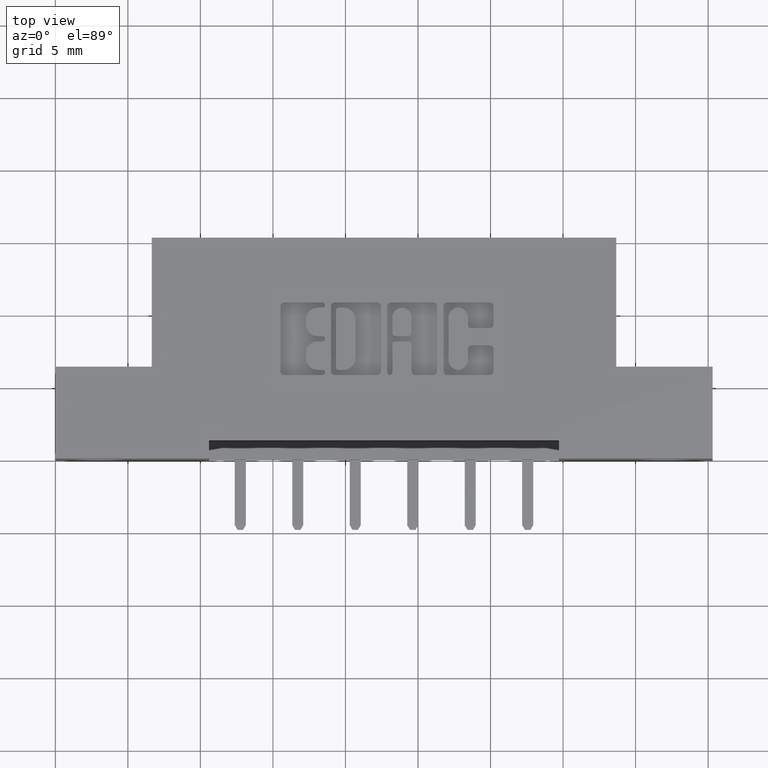
[diagram: clean part render]
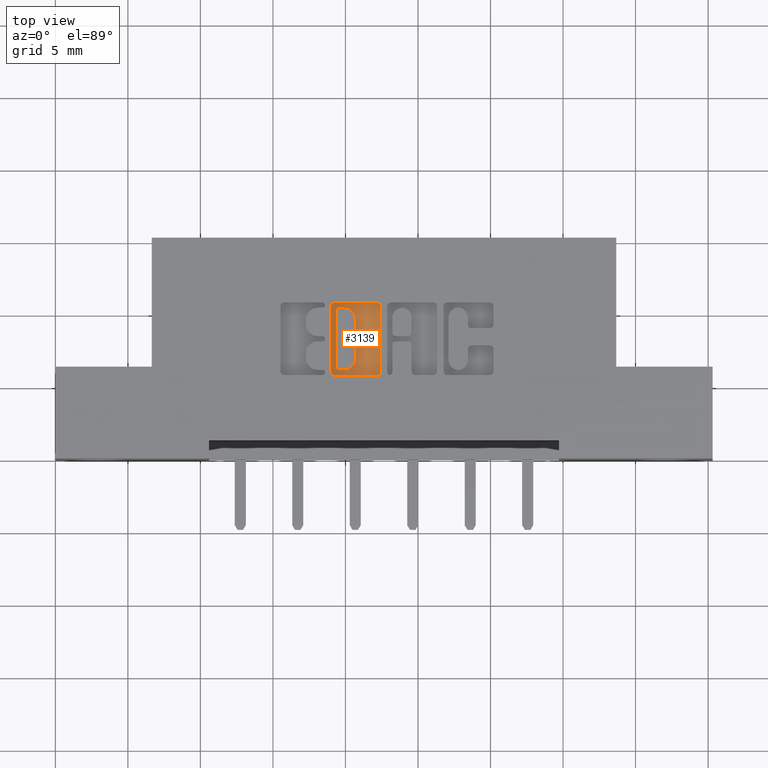
[diagram: same view with one face highlighted and labeled with its STEP entity id]
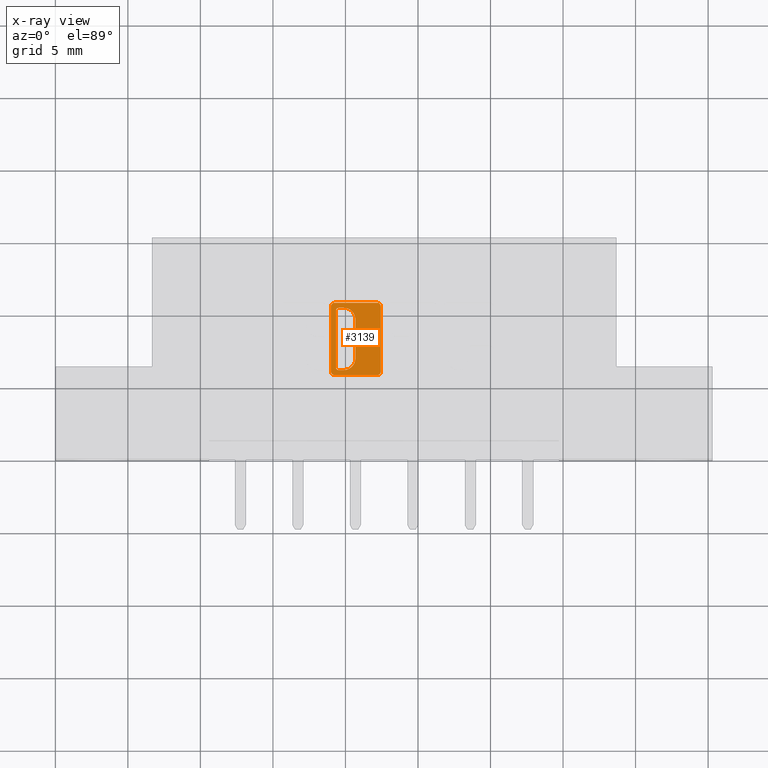
[diagram: x-ray of the same camera — body ghosted, the highlighted face saturated]
A machine part, top view. The second image highlights one B-rep face of the part: STEP entity #3139.
The next image is the same camera in x-ray: the body ghosted, the highlighted face saturated — about 0% of this face is hidden behind the body in this view.
In plain terms, the highlighted planar face has unit normal (0, 0, 1).
Its self-contained STEP definition (entity closure, byte-faithful):
#94 = VECTOR ( 'NONE', #9483, 39.37007874015748100 ) ;
#143 = DIRECTION ( 'NONE',  ( -0.0000000000000000000, 0.0000000000000000000, 1.000000000000000000 ) ) ;
#162 = DIRECTION ( 'NONE',  ( 1.000000000000000000, 0.0000000000000000000, 0.0000000000000000000 ) ) ;
#177 = DIRECTION ( 'NONE',  ( 1.000000000000000000, 0.0000000000000000000, 0.0000000000000000000 ) ) ;
#237 = DIRECTION ( 'NONE',  ( -0.0000000000000000000, 0.0000000000000000000, 1.000000000000000000 ) ) ;
#292 = ORIENTED_EDGE ( 'NONE', *, *, #4037, .F. ) ;
#304 = LINE ( 'NONE', #1488, #3826 ) ;
#370 = CARTESIAN_POINT ( 'NONE',  ( 0.7577707099630097700, 0.4133410318342098400, -0.01000000000000000000 ) ) ;
#591 = ORIENTED_EDGE ( 'NONE', *, *, #5240, .T. ) ;
#613 = ORIENTED_EDGE ( 'NONE', *, *, #1773, .T. ) ;
#661 = CIRCLE ( 'NONE', #7808, 0.009815670203806754800 ) ;
#672 = CARTESIAN_POINT ( 'NONE',  ( 0.8834112885716686200, 0.2366589681657896800, -0.01000000000000000000 ) ) ;
#867 = AXIS2_PLACEMENT_3D ( 'NONE', #8809, #8781, #8773 ) ;
#1113 = EDGE_CURVE ( 'NONE', #1542, #5861, #8024, .T. ) ;
#1160 = CARTESIAN_POINT ( 'NONE',  ( 0.7479550397591688800, 0.4133410318342098400, -0.01000000000000000000 ) ) ;
#1187 = DIRECTION ( 'NONE',  ( -0.0000000000000000000, 0.0000000000000000000, 1.000000000000000000 ) ) ;
#1282 = AXIS2_PLACEMENT_3D ( 'NONE', #370, #237, #162 ) ;
#1301 = ORIENTED_EDGE ( 'NONE', *, *, #3531, .T. ) ;
#1362 = CARTESIAN_POINT ( 'NONE',  ( 0.7479550397591688800, 0.2366589681657896800, -0.01000000000000000000 ) ) ;
#1395 = CARTESIAN_POINT ( 'NONE',  ( 0.8142108136348432700, 0.2719953808994842700, -0.01000000000000000000 ) ) ;
#1412 = EDGE_LOOP ( 'NONE', ( #613, #591, #2092, #4276, #1301, #4683, #5164, #7546 ) ) ;
#1488 = CARTESIAN_POINT ( 'NONE',  ( 0.0000000000000000000, 0.4094147637527241800, -0.01000000000000000000 ) ) ;
#1527 = VERTEX_POINT ( 'NONE', #4194 ) ;
#1542 = VERTEX_POINT ( 'NONE', #4350 ) ;
#1677 = CIRCLE ( 'NONE', #6327, 0.03141014465217194900 ) ;
#1708 = CARTESIAN_POINT ( 'NONE',  ( 0.0000000000000000000, 0.2268432979619829400, -0.01000000000000000000 ) ) ;
#1736 = CARTESIAN_POINT ( 'NONE',  ( 0.0000000000000000000, 0.2405852362473140100, -0.01000000000000000000 ) ) ;
#1754 = EDGE_CURVE ( 'NONE', #9568, #1527, #661, .T. ) ;
#1759 = AXIS2_PLACEMENT_3D ( 'NONE', #6618, #2136, #7354 ) ;
#1773 = EDGE_CURVE ( 'NONE', #8541, #6212, #8355, .T. ) ;
#1874 = AXIS2_PLACEMENT_3D ( 'NONE', #2987, #8193, #3746 ) ;
#1912 = FACE_BOUND ( 'NONE', #8977, .T. ) ;
#2063 = EDGE_CURVE ( 'NONE', #4796, #4233, #304, .T. ) ;
#2092 = ORIENTED_EDGE ( 'NONE', *, *, #8126, .T. ) ;
#2136 = DIRECTION ( 'NONE',  ( -0.0000000000000000000, 0.0000000000000000000, 1.000000000000000000 ) ) ;
#2425 = VECTOR ( 'NONE', #5284, 39.37007874015748100 ) ;
#2501 = DIRECTION ( 'NONE',  ( -1.000000000000000000, 0.0000000000000000000, 0.0000000000000000000 ) ) ;
#2803 = CIRCLE ( 'NONE', #4771, 0.006870969142667693000 ) ;
#2848 = LINE ( 'NONE', #4495, #6589 ) ;
#2959 = DIRECTION ( 'NONE',  ( -0.0000000000000000000, 0.0000000000000000000, 1.000000000000000000 ) ) ;
#2987 = CARTESIAN_POINT ( 'NONE',  ( 0.7828006689826730900, 0.2719953808994842700, -0.01000000000000000000 ) ) ;
#3017 = LINE ( 'NONE', #1708, #7460 ) ;
#3038 = EDGE_CURVE ( 'NONE', #8745, #8541, #6597, .T. ) ;
#3043 = VERTEX_POINT ( 'NONE', #8919 ) ;
#3071 = AXIS2_PLACEMENT_3D ( 'NONE', #7437, #2959, #8161 ) ;
#3139 = ADVANCED_FACE ( 'NONE', ( #1912, #7873 ), #8849, .T. ) ;
#3199 = VERTEX_POINT ( 'NONE', #8511 ) ;
#3269 = VERTEX_POINT ( 'NONE', #6590 ) ;
#3279 = VERTEX_POINT ( 'NONE', #6527 ) ;
#3283 = CARTESIAN_POINT ( 'NONE',  ( 0.8142108136348432700, 0.0000000000000000000, -0.01000000000000000000 ) ) ;
#3523 = EDGE_CURVE ( 'NONE', #3199, #3043, #2848, .T. ) ;
#3531 = EDGE_CURVE ( 'NONE', #9411, #9568, #8548, .T. ) ;
#3547 = ORIENTED_EDGE ( 'NONE', *, *, #5487, .T. ) ;
#3746 = DIRECTION ( 'NONE',  ( 1.000000000000000000, 0.0000000000000000000, 0.0000000000000000000 ) ) ;
#3789 = ORIENTED_EDGE ( 'NONE', *, *, #3523, .T. ) ;
#3826 = VECTOR ( 'NONE', #177, 39.37007874015748100 ) ;
#3878 = ORIENTED_EDGE ( 'NONE', *, *, #1113, .T. ) ;
#3893 = EDGE_CURVE ( 'NONE', #3269, #9411, #6836, .T. ) ;
#3972 = CARTESIAN_POINT ( 'NONE',  ( 0.0000000000000000000, 0.4231567020380507800, -0.01000000000000000000 ) ) ;
#4015 = CARTESIAN_POINT ( 'NONE',  ( 0.8735956183678617000, 0.2268432979619829400, -0.01000000000000000000 ) ) ;
#4034 = VERTEX_POINT ( 'NONE', #6806 ) ;
#4037 = EDGE_CURVE ( 'NONE', #1542, #4233, #1677, .T. ) ;
#4073 = DIRECTION ( 'NONE',  ( 1.000000000000000000, 0.0000000000000000000, 0.0000000000000000000 ) ) ;
#4138 = DIRECTION ( 'NONE',  ( 0.0000000000000000000, -1.000000000000000000, 0.0000000000000000000 ) ) ;
#4194 = CARTESIAN_POINT ( 'NONE',  ( 0.7577707099629755700, 0.2268432979619829400, -0.01000000000000000000 ) ) ;
#4233 = VERTEX_POINT ( 'NONE', #9265 ) ;
#4276 = ORIENTED_EDGE ( 'NONE', *, *, #3893, .T. ) ;
#4350 = CARTESIAN_POINT ( 'NONE',  ( 0.8142108136348432700, 0.3780046191005522700, -0.01000000000000000000 ) ) ;
#4383 = DIRECTION ( 'NONE',  ( 0.0000000000000000000, 1.000000000000000000, -0.0000000000000000000 ) ) ;
#4398 = CARTESIAN_POINT ( 'NONE',  ( 0.7479550397591688800, 0.0000000000000000000, -0.01000000000000000000 ) ) ;
#4495 = CARTESIAN_POINT ( 'NONE',  ( 0.7616969780444983200, 0.0000000000000000000, -0.01000000000000000000 ) ) ;
#4608 = ORIENTED_EDGE ( 'NONE', *, *, #9041, .F. ) ;
#4610 = LINE ( 'NONE', #1736, #8308 ) ;
#4636 = CARTESIAN_POINT ( 'NONE',  ( 0.7828006689826713100, 0.3780046191005522700, -0.01000000000000000000 ) ) ;
#4683 = ORIENTED_EDGE ( 'NONE', *, *, #1754, .T. ) ;
#4757 = DIRECTION ( 'NONE',  ( 1.000000000000000000, 0.0000000000000000000, 0.0000000000000000000 ) ) ;
#4771 = AXIS2_PLACEMENT_3D ( 'NONE', #5697, #1187, #6430 ) ;
#4788 = DIRECTION ( 'NONE',  ( -0.0000000000000000000, 0.0000000000000000000, 1.000000000000000000 ) ) ;
#4796 = VERTEX_POINT ( 'NONE', #6208 ) ;
#4818 = CARTESIAN_POINT ( 'NONE',  ( 0.7577707099629755700, 0.2366589681657896800, -0.01000000000000000000 ) ) ;
#5148 = ORIENTED_EDGE ( 'NONE', *, *, #6834, .F. ) ;
#5164 = ORIENTED_EDGE ( 'NONE', *, *, #7527, .T. ) ;
#5240 = EDGE_CURVE ( 'NONE', #6212, #4034, #6707, .T. ) ;
#5255 = CARTESIAN_POINT ( 'NONE',  ( 0.8834112885716686200, 0.0000000000000000000, -0.01000000000000000000 ) ) ;
#5284 = DIRECTION ( 'NONE',  ( 0.0000000000000000000, 1.000000000000000000, -0.0000000000000000000 ) ) ;
#5399 = DIRECTION ( 'NONE',  ( 1.000000000000000000, 0.0000000000000000000, 0.0000000000000000000 ) ) ;
#5487 = EDGE_CURVE ( 'NONE', #3279, #6595, #4610, .T. ) ;
#5540 = ORIENTED_EDGE ( 'NONE', *, *, #2063, .T. ) ;
#5596 = VECTOR ( 'NONE', #9134, 39.37007874015748100 ) ;
#5697 = CARTESIAN_POINT ( 'NONE',  ( 0.7685679471871660300, 0.4025437946100565200, -0.01000000000000000000 ) ) ;
#5861 = VERTEX_POINT ( 'NONE', #1395 ) ;
#6068 = CARTESIAN_POINT ( 'NONE',  ( 0.0000000000000000000, 0.0000000000000000000, -0.01000000000000000000 ) ) ;
#6076 = ORIENTED_EDGE ( 'NONE', *, *, #7338, .F. ) ;
#6190 = DIRECTION ( 'NONE',  ( 1.000000000000000000, 0.0000000000000000000, 0.0000000000000000000 ) ) ;
#6208 = CARTESIAN_POINT ( 'NONE',  ( 0.7685679471871660300, 0.4094147637527241800, -0.01000000000000000000 ) ) ;
#6212 = VERTEX_POINT ( 'NONE', #7148 ) ;
#6327 = AXIS2_PLACEMENT_3D ( 'NONE', #4636, #143, #5399 ) ;
#6386 = AXIS2_PLACEMENT_3D ( 'NONE', #6068, #9442, #4073 ) ;
#6430 = DIRECTION ( 'NONE',  ( 1.000000000000000000, 0.0000000000000000000, 0.0000000000000000000 ) ) ;
#6493 = VECTOR ( 'NONE', #4138, 39.37007874015748100 ) ;
#6527 = CARTESIAN_POINT ( 'NONE',  ( 0.7828006689826730900, 0.2405852362473140100, -0.01000000000000000000 ) ) ;
#6589 = VECTOR ( 'NONE', #4383, 39.37007874015748100 ) ;
#6590 = CARTESIAN_POINT ( 'NONE',  ( 0.7577707099630097700, 0.4231567020380507800, -0.01000000000000000000 ) ) ;
#6595 = VERTEX_POINT ( 'NONE', #6887 ) ;
#6597 = CIRCLE ( 'NONE', #867, 0.009815670203806891800 ) ;
#6618 = CARTESIAN_POINT ( 'NONE',  ( 0.7685679471871614800, 0.2474562053899772300, -0.01000000000000000000 ) ) ;
#6646 = CIRCLE ( 'NONE', #1874, 0.03141014465217017300 ) ;
#6707 = CIRCLE ( 'NONE', #3071, 0.009815670203841039800 ) ;
#6806 = CARTESIAN_POINT ( 'NONE',  ( 0.8735956183678956800, 0.4231567020380507800, -0.01000000000000000000 ) ) ;
#6834 = EDGE_CURVE ( 'NONE', #4796, #3043, #2803, .T. ) ;
#6836 = CIRCLE ( 'NONE', #1282, 0.009815670203840902800 ) ;
#6887 = CARTESIAN_POINT ( 'NONE',  ( 0.7685679471871614800, 0.2405852362473140100, -0.01000000000000000000 ) ) ;
#7148 = CARTESIAN_POINT ( 'NONE',  ( 0.8834112885716686200, 0.4133410318342098400, -0.01000000000000000000 ) ) ;
#7338 = EDGE_CURVE ( 'NONE', #3279, #5861, #6646, .T. ) ;
#7354 = DIRECTION ( 'NONE',  ( 1.000000000000000000, 0.0000000000000000000, 0.0000000000000000000 ) ) ;
#7437 = CARTESIAN_POINT ( 'NONE',  ( 0.8735956183678275100, 0.4133410318342097300, -0.01000000000000000000 ) ) ;
#7460 = VECTOR ( 'NONE', #6190, 39.37007874015748100 ) ;
#7527 = EDGE_CURVE ( 'NONE', #1527, #8745, #3017, .T. ) ;
#7546 = ORIENTED_EDGE ( 'NONE', *, *, #3038, .T. ) ;
#7808 = AXIS2_PLACEMENT_3D ( 'NONE', #4818, #4788, #4757 ) ;
#7873 = FACE_OUTER_BOUND ( 'NONE', #1412, .T. ) ;
#8024 = LINE ( 'NONE', #3283, #94 ) ;
#8126 = EDGE_CURVE ( 'NONE', #4034, #3269, #9266, .T. ) ;
#8161 = DIRECTION ( 'NONE',  ( 1.000000000000000000, 0.0000000000000000000, 0.0000000000000000000 ) ) ;
#8193 = DIRECTION ( 'NONE',  ( -0.0000000000000000000, 0.0000000000000000000, 1.000000000000000000 ) ) ;
#8308 = VECTOR ( 'NONE', #2501, 39.37007874015748100 ) ;
#8355 = LINE ( 'NONE', #5255, #2425 ) ;
#8511 = CARTESIAN_POINT ( 'NONE',  ( 0.7616969780444983200, 0.2474562053899772300, -0.01000000000000000000 ) ) ;
#8541 = VERTEX_POINT ( 'NONE', #672 ) ;
#8548 = LINE ( 'NONE', #4398, #6493 ) ;
#8572 = CIRCLE ( 'NONE', #1759, 0.006870969142663185300 ) ;
#8745 = VERTEX_POINT ( 'NONE', #4015 ) ;
#8773 = DIRECTION ( 'NONE',  ( 1.000000000000000000, 0.0000000000000000000, 0.0000000000000000000 ) ) ;
#8781 = DIRECTION ( 'NONE',  ( -0.0000000000000000000, 0.0000000000000000000, 1.000000000000000000 ) ) ;
#8809 = CARTESIAN_POINT ( 'NONE',  ( 0.8735956183678617000, 0.2366589681657896800, -0.01000000000000000000 ) ) ;
#8849 = PLANE ( 'NONE',  #6386 ) ;
#8919 = CARTESIAN_POINT ( 'NONE',  ( 0.7616969780444983200, 0.4025437946100565200, -0.01000000000000000000 ) ) ;
#8977 = EDGE_LOOP ( 'NONE', ( #5148, #5540, #292, #3878, #6076, #3547, #4608, #3789 ) ) ;
#9041 = EDGE_CURVE ( 'NONE', #3199, #6595, #8572, .T. ) ;
#9134 = DIRECTION ( 'NONE',  ( -1.000000000000000000, 0.0000000000000000000, 0.0000000000000000000 ) ) ;
#9265 = CARTESIAN_POINT ( 'NONE',  ( 0.7828006689826775300, 0.4094147637527241800, -0.01000000000000000000 ) ) ;
#9266 = LINE ( 'NONE', #3972, #5596 ) ;
#9411 = VERTEX_POINT ( 'NONE', #1160 ) ;
#9442 = DIRECTION ( 'NONE',  ( -0.0000000000000000000, 0.0000000000000000000, 1.000000000000000000 ) ) ;
#9483 = DIRECTION ( 'NONE',  ( 0.0000000000000000000, -1.000000000000000000, 0.0000000000000000000 ) ) ;
#9568 = VERTEX_POINT ( 'NONE', #1362 ) ;